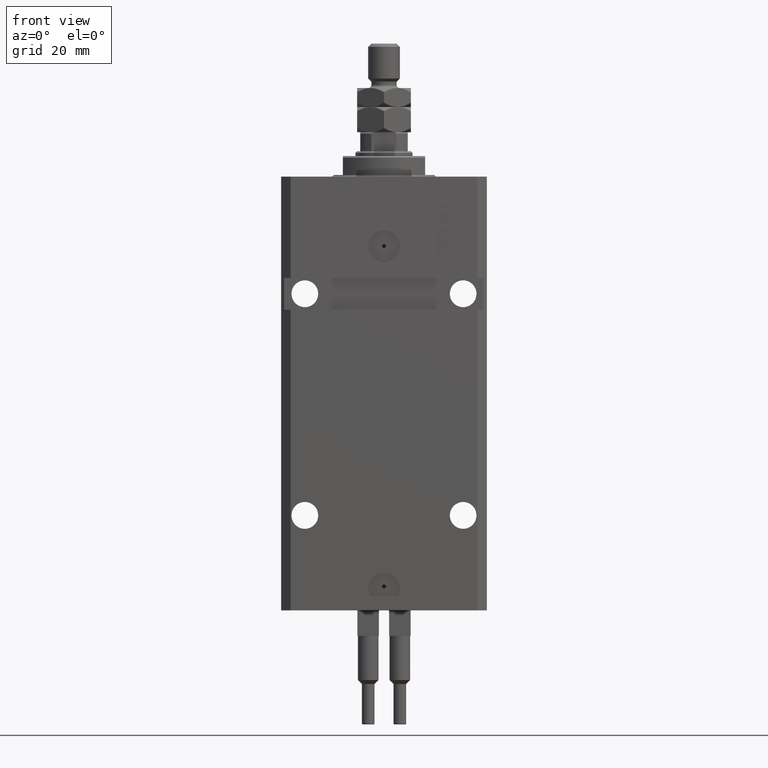
[diagram: clean part render]
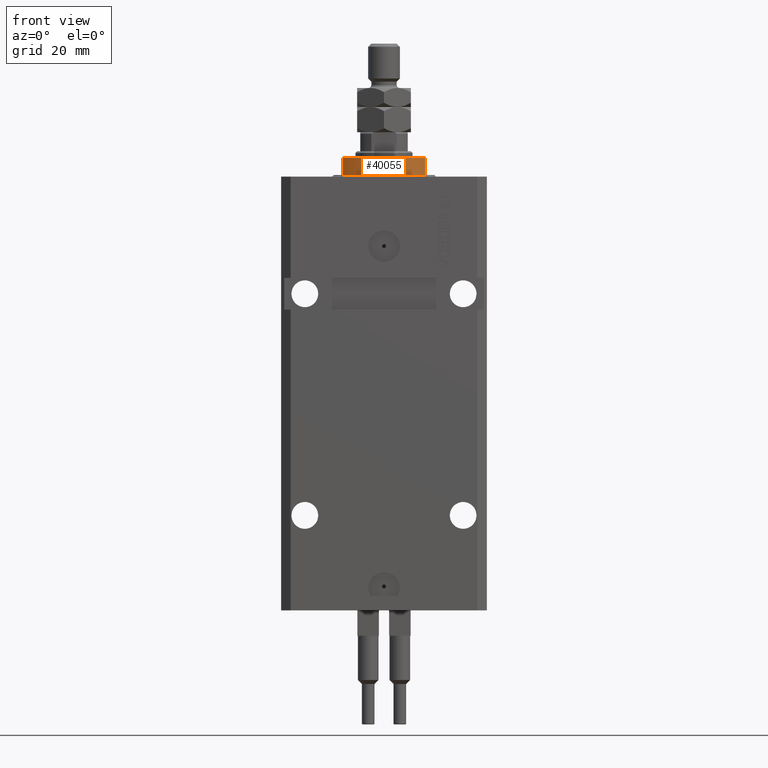
[diagram: same view with one face highlighted and labeled with its STEP entity id]
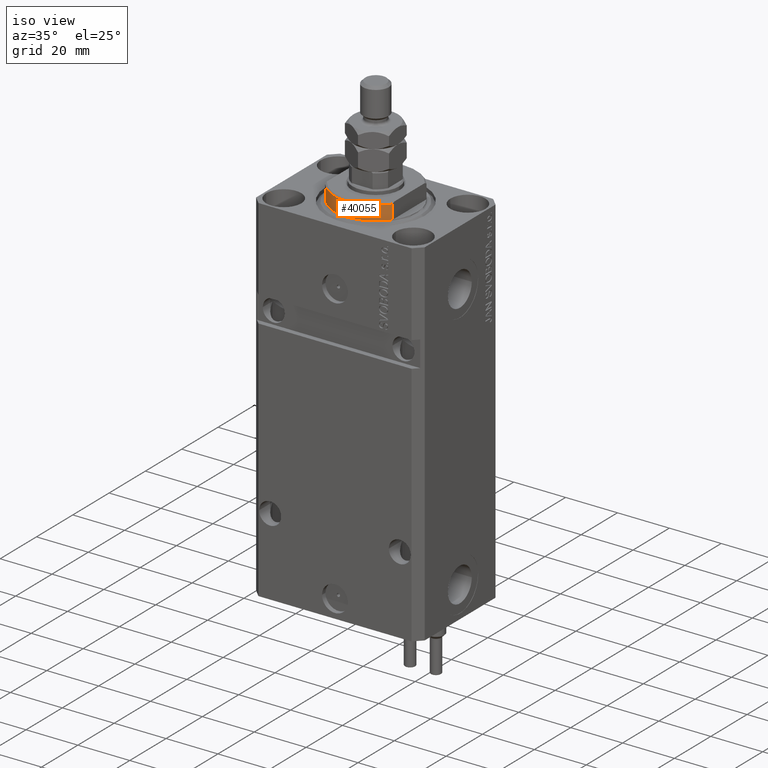
[diagram: same view with one face highlighted and labeled with its STEP entity id]
A machine part, front view. The second image highlights one B-rep face of the part: STEP entity #40055.
A second angle (iso view) of the same face is appended — the face is thin or edge-on in the first view.
In plain terms, the highlighted cylindrical surface (partial cylindrical patch) has radius 16 mm, axis along (0, 0, -1).
Its self-contained STEP definition (entity closure, byte-faithful):
#1233 = CARTESIAN_POINT ( 'NONE',  ( -13.00000000000000000, -9.327379053088813876, -6.500000000000000000 ) ) ;
#2445 = ORIENTED_EDGE ( 'NONE', *, *, #18567, .T. ) ;
#2975 = CARTESIAN_POINT ( 'NONE',  ( 13.00000000000000000, -9.327379053088815652, -6.000000000000023981 ) ) ;
#3629 = DIRECTION ( 'NONE',  ( 1.000000000000000000, 0.000000000000000000, 0.000000000000000000 ) ) ;
#3845 = ORIENTED_EDGE ( 'NONE', *, *, #11591, .T. ) ;
#4305 = DIRECTION ( 'NONE',  ( 1.000000000000000000, 0.000000000000000000, 0.000000000000000000 ) ) ;
#5230 = VERTEX_POINT ( 'NONE', #6661 ) ;
#6661 = CARTESIAN_POINT ( 'NONE',  ( -13.00000000000000000, -9.327379053088815652, -0.4999999999999995559 ) ) ;
#7025 = CARTESIAN_POINT ( 'NONE',  ( 13.00000000000000000, -9.327379053088815652, -0.4999999999999995559 ) ) ;
#7392 = DIRECTION ( 'NONE',  ( -0.000000000000000000, -0.000000000000000000, 1.000000000000000000 ) ) ;
#8383 = VERTEX_POINT ( 'NONE', #7025 ) ;
#8468 = CIRCLE ( 'NONE', #35460, 16.00000000000000000 ) ;
#8879 = EDGE_CURVE ( 'NONE', #46600, #45964, #8468, .T. ) ;
#11591 = EDGE_CURVE ( 'NONE', #5230, #46600, #15795, .T. ) ;
#13888 = LINE ( 'NONE', #21079, #22324 ) ;
#14023 = CARTESIAN_POINT ( 'NONE',  ( 0.000000000000000000, 0.000000000000000000, -6.000000000000023981 ) ) ;
#15795 = LINE ( 'NONE', #1233, #38031 ) ;
#16871 = ORIENTED_EDGE ( 'NONE', *, *, #20917, .F. ) ;
#17829 = ORIENTED_EDGE ( 'NONE', *, *, #8879, .T. ) ;
#18144 = DIRECTION ( 'NONE',  ( -1.000000000000000000, 0.000000000000000000, 0.000000000000000000 ) ) ;
#18175 = CIRCLE ( 'NONE', #28780, 16.00000000000000000 ) ;
#18567 = EDGE_CURVE ( 'NONE', #8383, #5230, #18175, .T. ) ;
#19666 = CYLINDRICAL_SURFACE ( 'NONE', #37522, 16.00000000000000000 ) ;
#20917 = EDGE_CURVE ( 'NONE', #8383, #45964, #13888, .T. ) ;
#21079 = CARTESIAN_POINT ( 'NONE',  ( 13.00000000000000000, -9.327379053088813876, -6.500000000000000000 ) ) ;
#22324 = VECTOR ( 'NONE', #36698, 1000.000000000000000 ) ;
#27403 = DIRECTION ( 'NONE',  ( -0.000000000000000000, -0.000000000000000000, -1.000000000000000000 ) ) ;
#28780 = AXIS2_PLACEMENT_3D ( 'NONE', #38702, #27403, #3629 ) ;
#29147 = DIRECTION ( 'NONE',  ( 0.000000000000000000, 0.000000000000000000, 1.000000000000000000 ) ) ;
#34074 = CARTESIAN_POINT ( 'NONE',  ( -13.00000000000000000, -9.327379053088815652, -6.000000000000023981 ) ) ;
#35286 = CARTESIAN_POINT ( 'NONE',  ( 0.000000000000000000, 0.000000000000000000, -6.500000000000000000 ) ) ;
#35460 = AXIS2_PLACEMENT_3D ( 'NONE', #14023, #29147, #18144 ) ;
#36698 = DIRECTION ( 'NONE',  ( 0.000000000000000000, 0.000000000000000000, -1.000000000000000000 ) ) ;
#37522 = AXIS2_PLACEMENT_3D ( 'NONE', #35286, #7392, #4305 ) ;
#38031 = VECTOR ( 'NONE', #47810, 1000.000000000000000 ) ;
#38702 = CARTESIAN_POINT ( 'NONE',  ( 0.000000000000000000, 0.000000000000000000, -0.4999999999999995559 ) ) ;
#40055 = ADVANCED_FACE ( 'NONE', ( #42476 ), #19666, .T. ) ;
#42476 = FACE_OUTER_BOUND ( 'NONE', #43938, .T. ) ;
#43938 = EDGE_LOOP ( 'NONE', ( #16871, #2445, #3845, #17829 ) ) ;
#45964 = VERTEX_POINT ( 'NONE', #2975 ) ;
#46600 = VERTEX_POINT ( 'NONE', #34074 ) ;
#47810 = DIRECTION ( 'NONE',  ( 0.000000000000000000, 0.000000000000000000, -1.000000000000000000 ) ) ;